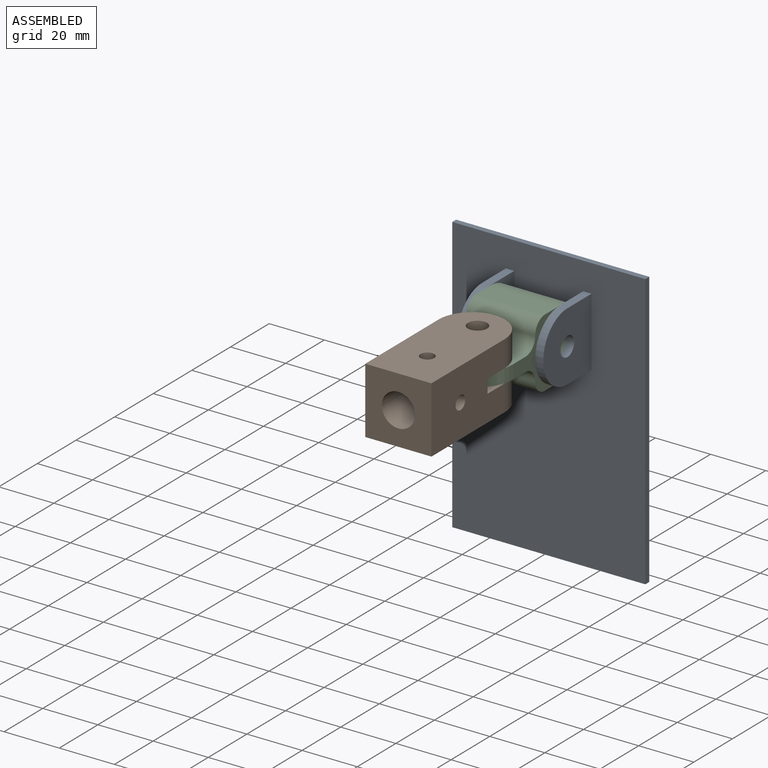
[diagram: assembled view]
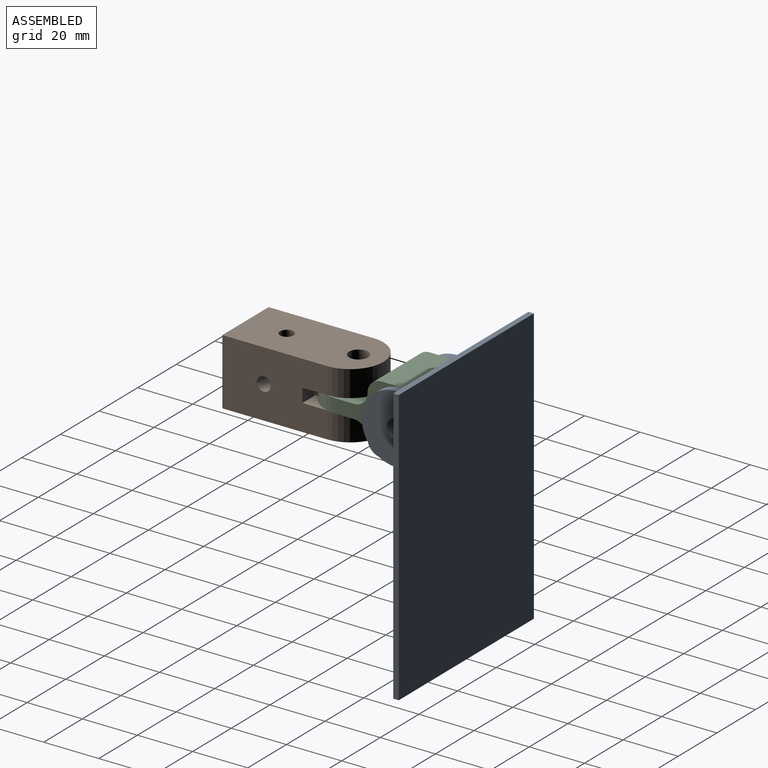
[diagram: assembled view, second angle]
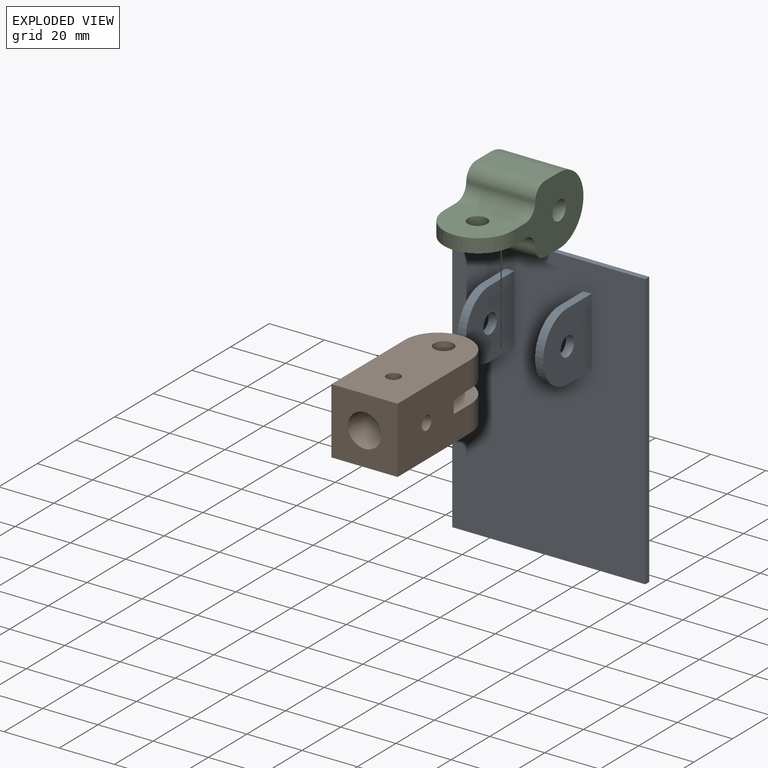
[diagram: exploded view]
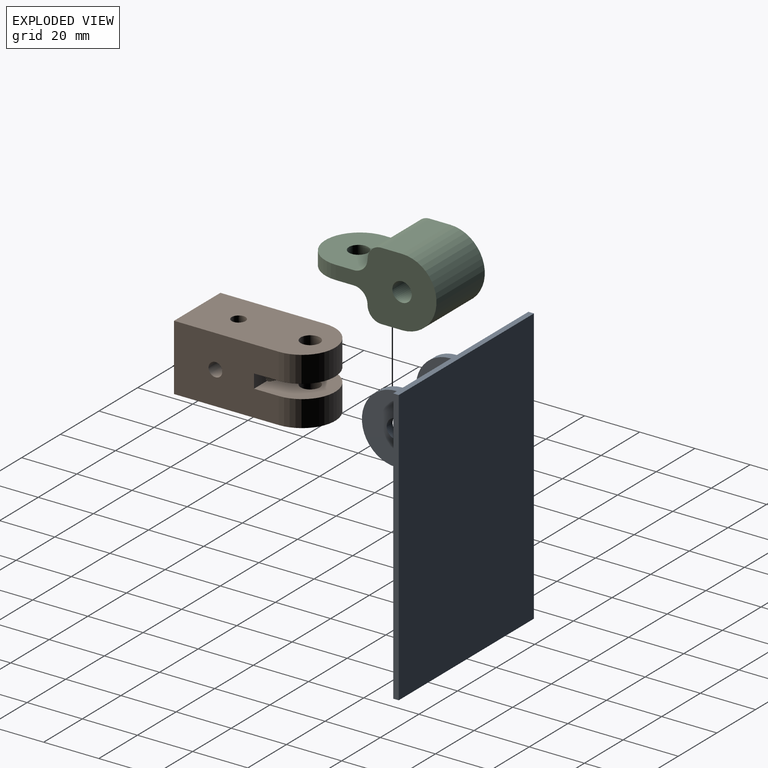
[diagram: exploded view, second angle]
ASSEMBLY  parts=3 mates=3
PART A: 18 faces, bbox 27x70x100 mm
  f0: plane 70x2mm, normal (0,0,-1), area 140mm2, adj f1,f3,f4,f5
  f1: plane 100x2mm, normal (0,1,0), area 200mm2, adj f0,f2,f4,f5
  f2: plane 70x2mm, normal (0,0,1), area 140mm2, adj f1,f3,f4,f5
  f3: plane 100x2mm, normal (0,-1,0), area 200mm2, adj f0,f2,f4,f5
  f4: plane 100x70mm, normal (1,0,0), area 7000mm2, adj f0,f1,f2,f3
  f5: plane 100x70mm, normal (-1,0,0), area 6850mm2, adj f0,f1,f2,f3,f6,f7,f8,f9
  f6: plane 12.5x3mm, normal (0,0,-1), area 37.5mm2, adj f5,f7,f9,f15
  f7: plane 25x25mm, normal (0,-1,0), area 519.5mm2, adj f5,f6,f8,f15,f17
  f8: plane 12.5x3mm, normal (0,0,1), area 37.5mm2, adj f5,f7,f9,f15
  f9: plane 25x25mm, normal (0,1,0), area 519.5mm2, adj f5,f6,f8,f15,f17
  f10: plane 12.5x3mm, normal (0,0,-1), area 37.5mm2, adj f5,f11,f13,f14
  f11: plane 25x25mm, normal (0,-1,0), area 519.5mm2, adj f5,f10,f12,f14,f16
  f12: plane 12.5x3mm, normal (0,0,1), area 37.5mm2, adj f5,f11,f13,f14
  f13: plane 25x25mm, normal (0,1,0), area 519.5mm2, adj f5,f10,f12,f14,f16
  f14: cylinder r=12.5mm len=25mm, axis (0,1,0), area 117.8mm2, adj f10,f11,f12,f13
  f15: cylinder r=12.5mm len=25mm, axis (0,1,0), area 117.8mm2, adj f6,f7,f8,f9
  f16: cylinder r=3.5mm len=7mm, axis (0,-1,0), area 66mm2, adj f11,f13
  f17: cylinder r=3.5mm len=7mm, axis (0,-1,0), area 66mm2, adj f7,f9
PART B: 18 faces, bbox 24x50x24 mm
  f0: cylinder r=6mm len=30mm, axis (0,-1,0), area 1080.5mm2, adj f3,f6,f7,f8,f9,f10,f11,f12
  f1: plane 38x24mm, normal (1,0,0), area 847.4mm2, adj f4,f5,f6,f8,f10,f11,f13,f16
  f2: plane 38x24mm, normal (-1,0,0), area 867mm2, adj f4,f5,f6,f11,f12,f13,f16,f17
  f3: cone r=0mm half-angle=59deg, axis (0,-1,0), area 32mm2, adj f0,f11
  f4: plane 50x24mm, normal (0,0,1), area 1080.1mm2, adj f1,f2,f6,f9,f15,f17
  f5: plane 50x24mm, normal (0,0,-1), area 1099.7mm2, adj f1,f2,f6,f14,f16
  f6: plane 24x24mm, normal (0,-1,0), area 462.9mm2, adj f0,f1,f2,f4,f5
  f7: cone r=0mm half-angle=59deg, axis (0,-1,0), area 32mm2, adj f0,f13
  f8: cylinder r=2.5mm len=6.55mm, axis (1,0,0), area 98.5mm2, adj f0,f1
  f9: cylinder r=2.5mm len=6.55mm, axis (0,0,1), area 98.5mm2, adj f0,f4
  f10: plane 6.55x5mm, normal (0,1,0), area 30.9mm2, adj f0,f1,f11,f13
  f11: plane 24x21mm, normal (0,0,-1), area 378.9mm2, adj f0,f1,f2,f3,f10,f12,f15,f17
  f12: plane 6.55x5mm, normal (0,1,0), area 30.9mm2, adj f0,f2,f11,f13
  f13: plane 24x21mm, normal (0,0,1), area 378.9mm2, adj f0,f1,f2,f7,f10,f12,f14,f16
  f14: cylinder r=3.5mm len=9.5mm, axis (0,0,-1), area 208.9mm2, adj f5,f13
  f15: cylinder r=3.5mm len=9.5mm, axis (0,0,-1), area 208.9mm2, adj f4,f11
  f16: cylinder r=12mm len=24mm, axis (0,0,-1), area 358.1mm2, adj f1,f2,f5,f13
  f17: cylinder r=12mm len=24mm, axis (0,0,1), area 358.1mm2, adj f1,f2,f4,f11
PART C: 14 faces, bbox 49x25x25 mm
  f0: plane 25x19mm, normal (0,0,1), area 369.5mm2, adj f4,f5,f8,f9,f11
  f1: plane 25x19mm, normal (0,0,-1), area 369.5mm2, adj f4,f5,f8,f9,f10
  f2: plane 25x7.5mm, normal (0,0,-1), area 187.5mm2, adj f4,f5,f7,f12
  f3: plane 25x7.5mm, normal (0,0,1), area 187.5mm2, adj f4,f5,f7,f13
  f4: plane 36.5x25mm, normal (0,-1,0), area 577mm2, adj f0,f1,f2,f3,f6,f7,f9,f10
  f5: plane 36.5x25mm, normal (0,1,0), area 577mm2, adj f0,f1,f2,f3,f6,f7,f9,f10
  f6: cylinder r=3.5mm len=25mm, axis (0,-1,0), area 549.8mm2, adj f4,f5
  f7: cylinder r=12.5mm len=25mm, axis (0,1,0), area 981.7mm2, adj f2,f3,f4,f5
  f8: cylinder r=3.5mm len=7mm, axis (0,0,1), area 110mm2, adj f0,f1
  f9: cylinder r=12.5mm len=25mm, axis (0,0,1), area 196.3mm2, adj f0,f1,f4,f5
  f10: cylinder r=5mm len=25mm, axis (0,-1,0), area 196.3mm2, adj f1,f4,f5,f12
  f11: cylinder r=5mm len=25mm, axis (0,1,0), area 196.3mm2, adj f0,f4,f5,f13
  f12: cylinder r=5mm len=25mm, axis (0,1,0), area 196.3mm2, adj f2,f4,f5,f10
  f13: cylinder r=5mm len=25mm, axis (0,1,0), area 196.3mm2, adj f3,f4,f5,f11
PLACE A rot(axis=(0,0,1),90deg) t=(25.1,70.19,-31.72)mm
PLACE B t=(24.35,42.2,-14.41)mm
PLACE C rot(axis=(-0.71,-0.71,0),180deg) t=(36.85,72.23,-20.56)mm
MATE cylindrical A.f15 <-> C.f6  axis (1,0,0) through (39.77,57.69,-14.41)mm
MATE cylindrical B.f14 <-> C.f8  axis (0,0,1) through (24.35,33.19,-2.41)mm
MATE planar C.f0 <-> B.f13  axis (0,0,-1) through (36.85,40.19,-16.91)mm
